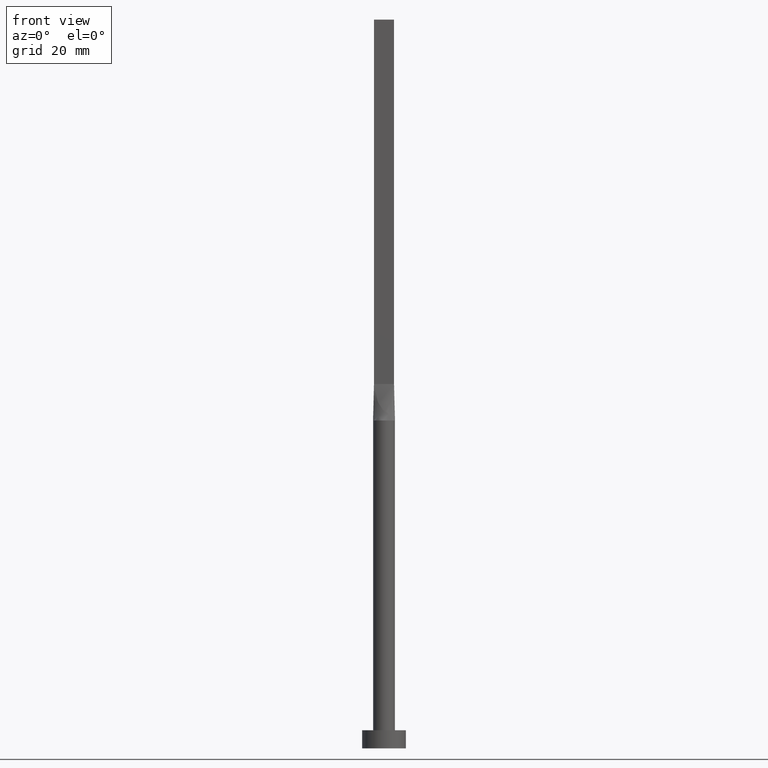
[diagram: clean part render]
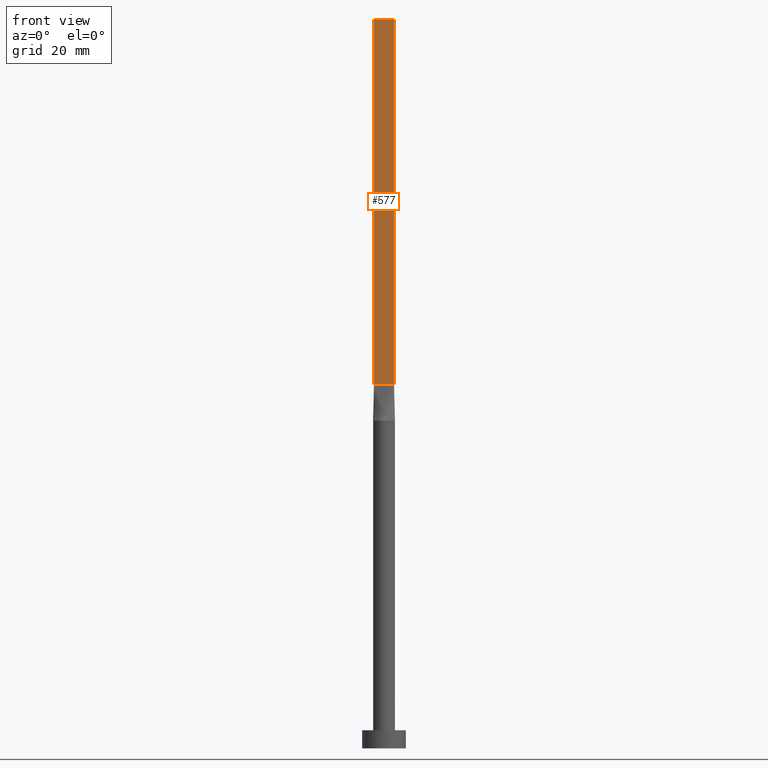
[diagram: same view with one face highlighted and labeled with its STEP entity id]
A machine part, front view. The second image highlights one B-rep face of the part: STEP entity #577.
In plain terms, the highlighted planar face has unit normal (0, 1, -0).
Its self-contained STEP definition (entity closure, byte-faithful):
#6 = CARTESIAN_POINT ( 'NONE',  ( 2.750000000000000000, -0.7499999999999997780, 200.0000000000000000 ) ) ;
#12 = VERTEX_POINT ( 'NONE', #153 ) ;
#25 = VECTOR ( 'NONE', #315, 1000.000000000000000 ) ;
#69 = VECTOR ( 'NONE', #514, 1000.000000000000000 ) ;
#93 = DIRECTION ( 'NONE',  ( -0.000000000000000000, -0.000000000000000000, -1.000000000000000000 ) ) ;
#96 = FACE_OUTER_BOUND ( 'NONE', #525, .T. ) ;
#102 = LINE ( 'NONE', #231, #25 ) ;
#107 = VECTOR ( 'NONE', #354, 1000.000000000000000 ) ;
#115 = CARTESIAN_POINT ( 'NONE',  ( -2.750000000000000000, -0.7499999999999994449, 200.0000000000000000 ) ) ;
#127 = CARTESIAN_POINT ( 'NONE',  ( 2.750000000000000000, -0.7499999999999997780, 200.0000000000000000 ) ) ;
#133 = VERTEX_POINT ( 'NONE', #115 ) ;
#136 = LINE ( 'NONE', #396, #427 ) ;
#146 = EDGE_CURVE ( 'NONE', #133, #203, #468, .T. ) ;
#153 = CARTESIAN_POINT ( 'NONE',  ( -2.750000000000000000, -0.7499999999999994449, 100.0000000000000000 ) ) ;
#165 = ORIENTED_EDGE ( 'NONE', *, *, #146, .F. ) ;
#181 = LINE ( 'NONE', #6, #107 ) ;
#203 = VERTEX_POINT ( 'NONE', #127 ) ;
#217 = DIRECTION ( 'NONE',  ( -1.000000000000000000, 5.913830031739115543E-17, 0.000000000000000000 ) ) ;
#220 = CARTESIAN_POINT ( 'NONE',  ( 2.750000000000000000, -0.7499999999999997780, 100.0000000000000000 ) ) ;
#231 = CARTESIAN_POINT ( 'NONE',  ( -2.750000000000000000, -0.7499999999999994449, 100.0000000000000000 ) ) ;
#234 = ORIENTED_EDGE ( 'NONE', *, *, #358, .F. ) ;
#269 = ORIENTED_EDGE ( 'NONE', *, *, #305, .T. ) ;
#305 = EDGE_CURVE ( 'NONE', #12, #342, #102, .T. ) ;
#309 = CARTESIAN_POINT ( 'NONE',  ( -2.750000000000000000, -0.7499999999999994449, 200.0000000000000000 ) ) ;
#312 = EDGE_CURVE ( 'NONE', #133, #12, #136, .T. ) ;
#315 = DIRECTION ( 'NONE',  ( 1.000000000000000000, -5.913830031739115543E-17, 0.000000000000000000 ) ) ;
#320 = AXIS2_PLACEMENT_3D ( 'NONE', #309, #489, #217 ) ;
#342 = VERTEX_POINT ( 'NONE', #220 ) ;
#354 = DIRECTION ( 'NONE',  ( -0.000000000000000000, -0.000000000000000000, -1.000000000000000000 ) ) ;
#358 = EDGE_CURVE ( 'NONE', #203, #342, #181, .T. ) ;
#396 = CARTESIAN_POINT ( 'NONE',  ( -2.750000000000000000, -0.7499999999999994449, 200.0000000000000000 ) ) ;
#421 = CARTESIAN_POINT ( 'NONE',  ( -2.750000000000000000, -0.7499999999999994449, 200.0000000000000000 ) ) ;
#427 = VECTOR ( 'NONE', #93, 1000.000000000000000 ) ;
#468 = LINE ( 'NONE', #421, #69 ) ;
#480 = ORIENTED_EDGE ( 'NONE', *, *, #312, .T. ) ;
#489 = DIRECTION ( 'NONE',  ( 5.913830031739115543E-17, 1.000000000000000000, -0.000000000000000000 ) ) ;
#514 = DIRECTION ( 'NONE',  ( 1.000000000000000000, -5.913830031739115543E-17, 0.000000000000000000 ) ) ;
#525 = EDGE_LOOP ( 'NONE', ( #269, #234, #165, #480 ) ) ;
#537 = PLANE ( 'NONE',  #320 ) ;
#577 = ADVANCED_FACE ( 'NONE', ( #96 ), #537, .F. ) ;